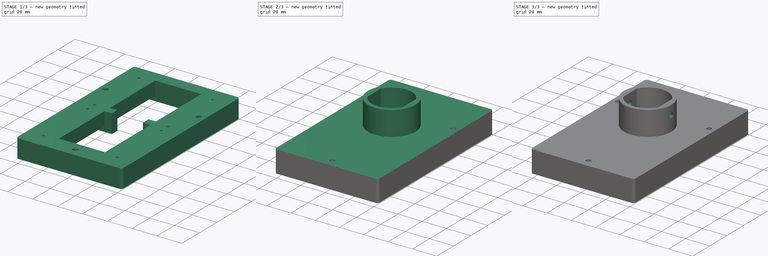
[diagram: build sequence overview — one tinted view per stage of 3, left to right]
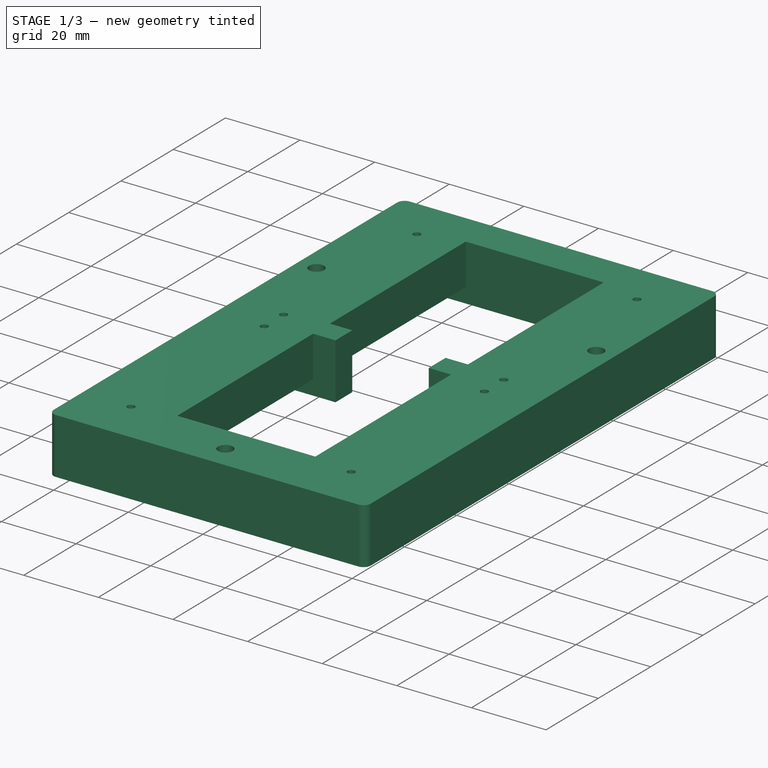
[diagram: stage 1 of 3 — iso view after this stage's code; geometry added in this stage tinted green]
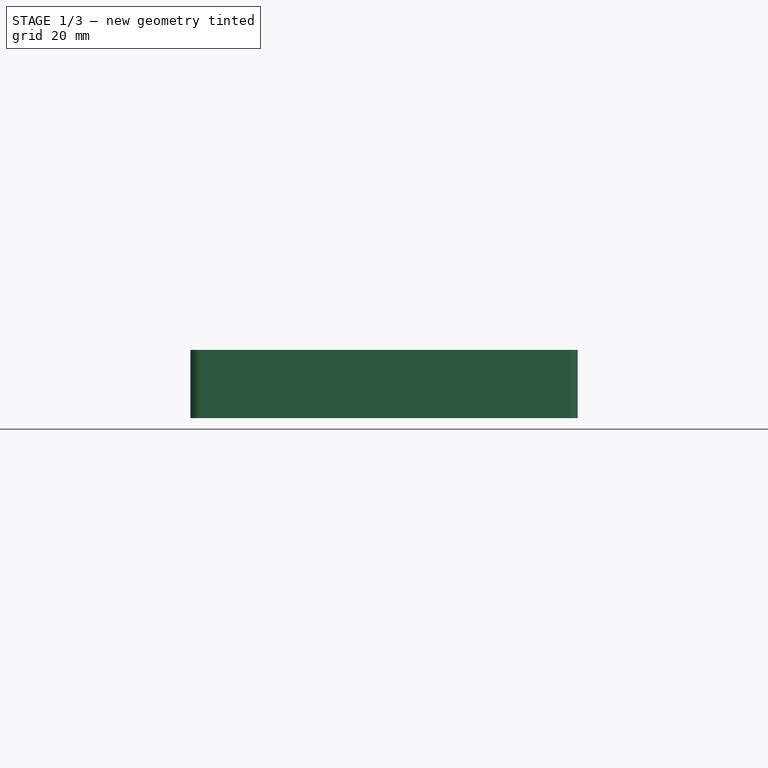
[diagram: stage 1 of 3 — front view after this stage's code; geometry added in this stage tinted green]
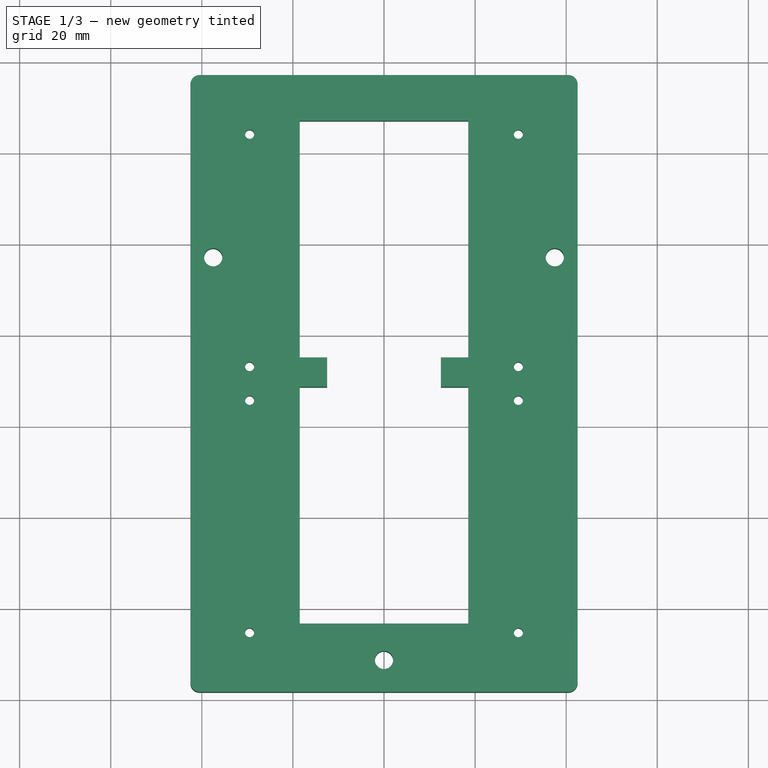
[diagram: stage 1 of 3 — top view after this stage's code; geometry added in this stage tinted green]
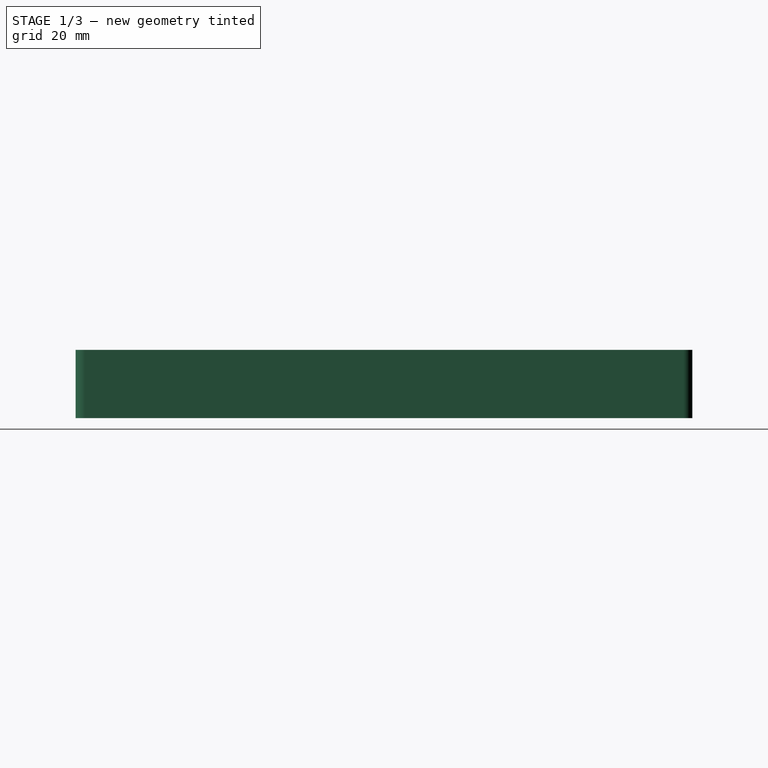
[diagram: stage 1 of 3 — right view after this stage's code; geometry added in this stage tinted green]
FCSTD DOCUMENT  (FreeCAD 1.0R39285 (Git))
Label: dd_3
License: All rights reserved
LicenseURL: https://en.wikipedia.org/wiki/All_rights_reserved
objects: Sketcher::SketchObject×7, PartDesign::Pad×4, PartDesign::Body×2, PartDesign::Pocket×2
note: 34 computed .brp shape members not serialized (recipe doc carries the construction recipe); baked Part::Feature solids carry a one-line shape summary decoded from their .brp

FEATURE [Sketcher::SketchObject] Sketch
  ArcFitTolerance = 1e-06
  AttachmentSupport = -> [XY_Plane]
  FullyConstrained = false
  MakeInternals = false
  MapMode = 5
  sketch-geometry (67):
    g0: LineSegment StartX=-32.5 StartY=25.6258 StartZ=0 EndX=-32.5 EndY=-25.3742 EndZ=0
    g1: LineSegment StartX=32.5 StartY=-25.3742 StartZ=0 EndX=32.5 EndY=25.6258 EndZ=0
    g2: LineSegment StartX=29.5 StartY=28.6258 StartZ=0 EndX=12.5 EndY=28.6258 EndZ=0
    g3: Circle CenterX=-29.5 CenterY=25.6258 CenterZ=0 NormalX=0 NormalY=0 NormalZ=1 AngleXU=0 Radius=1.25
    g4: Circle CenterX=29.5 CenterY=25.6258 CenterZ=0 NormalX=0 NormalY=0 NormalZ=1 AngleXU=0 Radius=1.25
    g5: Circle CenterX=29.5 CenterY=-25.3742 CenterZ=0 NormalX=0 NormalY=0 NormalZ=1 AngleXU=0 Radius=1.25
    g6: Circle CenterX=-29.5 CenterY=-25.3742 CenterZ=0 NormalX=0 NormalY=0 NormalZ=1 AngleXU=0 Radius=1.25
    g7: ArcOfCircle CenterX=-29.5 CenterY=25.6258 CenterZ=0 NormalX=0 NormalY=0 NormalZ=1 AngleXU=0 Radius=3 StartAngle=1.5708 EndAngle=3.14159
    g8: GeomPoint [constr] X=-32.5 Y=28.6258 Z=0
    g9: ArcOfCircle CenterX=29.5 CenterY=25.6258 CenterZ=0 NormalX=0 NormalY=0 NormalZ=1 AngleXU=0 Radius=3 StartAngle=2e-16 EndAngle=1.5708
    g10: GeomPoint [constr] X=32.5 Y=28.6258 Z=0
    g11: ArcOfCircle CenterX=-29.5 CenterY=-25.3742 CenterZ=0 NormalX=0 NormalY=0 NormalZ=1 AngleXU=0 Radius=3 StartAngle=3.14159 EndAngle=6.28319
    g12: ArcOfCircle CenterX=29.5 CenterY=-25.3742 CenterZ=0 NormalX=0 NormalY=0 NormalZ=1 AngleXU=0 Radius=3 StartAngle=3.14159 EndAngle=6.28319
    g13: LineSegment StartX=-26.5 StartY=-24.3742 StartZ=0 EndX=-26.5 EndY=-25.3742 EndZ=0
    g14: LineSegment StartX=26.5 StartY=-25.3742 StartZ=0 EndX=26.5 EndY=-24.3742 EndZ=0
    g15: LineSegment StartX=25.5 StartY=-23.3742 StartZ=0 EndX=-25.5 EndY=-23.3742 EndZ=0
    g16: ArcOfCircle CenterX=25.5 CenterY=-24.3742 CenterZ=0 NormalX=0 NormalY=0 NormalZ=1 AngleXU=0 Radius=1 StartAngle=0 EndAngle=1.5708
    g17: GeomPoint [constr] X=26.5 Y=-23.3742 Z=0
    g18: ArcOfCircle CenterX=-25.5 CenterY=-24.3742 CenterZ=0 NormalX=0 NormalY=0 NormalZ=1 AngleXU=0 Radius=1 StartAngle=1.5708 EndAngle=3.14159
    g19: GeomPoint [constr] X=-26.5 Y=-23.3742 Z=0
    g20: LineSegment StartX=-32.5 StartY=84.0458 StartZ=0 EndX=-32.5 EndY=33.0458 EndZ=0
    g21: LineSegment StartX=32.5 StartY=33.0458 StartZ=0 EndX=32.5 EndY=84.0458 EndZ=0
    g22: LineSegment StartX=29.5 StartY=87.0458 StartZ=0 EndX=-29.5 EndY=87.0458 EndZ=0
    g23: LineSegment StartX=-26.5 StartY=34.0458 StartZ=0 EndX=-26.5 EndY=33.0458 EndZ=0
    g24: LineSegment StartX=26.5 StartY=33.0458 StartZ=0 EndX=26.5 EndY=34.0458 EndZ=0
    g25: LineSegment StartX=25.5 StartY=35.0458 StartZ=0 EndX=12.5 EndY=35.0458 EndZ=0
    g26: Circle CenterX=-29.5 CenterY=84.0458 CenterZ=0 NormalX=0 NormalY=0 NormalZ=1 AngleXU=0 Radius=1.25
    g27: Circle CenterX=29.5 CenterY=84.0458 CenterZ=0 NormalX=0 NormalY=0 NormalZ=1 AngleXU=0 Radius=1.25
    g28: Circle CenterX=-29.5 CenterY=33.0458 CenterZ=0 NormalX=0 NormalY=0 NormalZ=1 AngleXU=0 Radius=1.25
    g29: Circle CenterX=29.5 CenterY=33.0458 CenterZ=0 NormalX=0 NormalY=0 NormalZ=1 AngleXU=0 Radius=1.25
    g30: ArcOfCircle CenterX=-29.5 CenterY=33.0458 CenterZ=0 NormalX=0 NormalY=0 NormalZ=1 AngleXU=0 Radius=3 StartAngle=3.14159 EndAngle=6.28319
    g31: ArcOfCircle CenterX=29.5 CenterY=33.0458 CenterZ=0 NormalX=0 NormalY=0 NormalZ=1 AngleXU=0 Radius=3 StartAngle=3.14159 EndAngle=6.28319
    g32: ArcOfCircle CenterX=-29.5 CenterY=84.0458 CenterZ=0 NormalX=0 NormalY=0 NormalZ=1 AngleXU=0 Radius=3 StartAngle=1.5708 EndAngle=3.14159
    g33: GeomPoint [constr] X=-32.5 Y=87.0458 Z=0
    g34: ArcOfCircle CenterX=29.5 CenterY=84.0458 CenterZ=0 NormalX=0 NormalY=0 NormalZ=1 AngleXU=0 Radius=3 StartAngle=2.2e-15 EndAngle=1.5708
    g35: GeomPoint [constr] X=32.5 Y=87.0458 Z=0
    g36: ArcOfCircle CenterX=-25.5 CenterY=34.0458 CenterZ=0 NormalX=0 NormalY=0 NormalZ=1 AngleXU=0 Radius=1 StartAngle=1.5708 EndAngle=3.14159
    g37: GeomPoint [constr] X=-26.5 Y=35.0458 Z=0
    g38: ArcOfCircle CenterX=25.5 CenterY=34.0458 CenterZ=0 NormalX=0 NormalY=0 NormalZ=1 AngleXU=0 Radius=1 StartAngle=1.9e-15 EndAngle=1.5708
    g39: GeomPoint [constr] X=26.5 Y=35.0458 Z=0
    g40: LineSegment StartX=-42.5 StartY=95.0458 StartZ=0 EndX=-42.5 EndY=-36.3742 EndZ=0
    g41: LineSegment StartX=-40.5 StartY=-38.3742 StartZ=0 EndX=40.5 EndY=-38.3742 EndZ=0
    g42: LineSegment StartX=42.5 StartY=-36.3742 StartZ=0 EndX=42.5 EndY=95.0458 EndZ=0
    g43: LineSegment StartX=40.5 StartY=97.0458 StartZ=0 EndX=-40.5 EndY=97.0458 EndZ=0
    g44: ArcOfCircle CenterX=-40.5 CenterY=95.0458 CenterZ=0 NormalX=0 NormalY=0 NormalZ=1 AngleXU=0 Radius=2 StartAngle=1.5708 EndAngle=3.14159
    g45: GeomPoint [constr] X=-42.5 Y=97.0458 Z=0
    g46: ArcOfCircle CenterX=40.5 CenterY=95.0458 CenterZ=0 NormalX=0 NormalY=0 NormalZ=1 AngleXU=0 Radius=2 StartAngle=-1.8e-15 EndAngle=1.5708
    g47: GeomPoint [constr] X=42.5 Y=97.0458 Z=0
    g48: ArcOfCircle CenterX=40.5 CenterY=-36.3742 CenterZ=0 NormalX=0 NormalY=0 NormalZ=1 AngleXU=0 Radius=2 StartAngle=4.71239 EndAngle=6.28319
    g49: GeomPoint [constr] X=42.5 Y=-38.3742 Z=0
    g50: ArcOfCircle CenterX=-40.5 CenterY=-36.3742 CenterZ=0 NormalX=0 NormalY=0 NormalZ=1 AngleXU=0 Radius=2 StartAngle=3.14159 EndAngle=4.71239
    g51: GeomPoint [constr] X=-42.5 Y=-38.3742 Z=0
    g52: ArcOfCircle CenterX=-10.5 CenterY=25.6258 CenterZ=0 NormalX=0 NormalY=0 NormalZ=1 AngleXU=0 Radius=1.25 StartAngle=1.5708 EndAngle=4.71239
    g53: ArcOfCircle CenterX=9.82 CenterY=25.6258 CenterZ=0 NormalX=0 NormalY=0 NormalZ=1 AngleXU=0 Radius=1.25 StartAngle=4.71239 EndAngle=7.85398
    g54: LineSegment StartX=-10.5 StartY=24.3758 StartZ=0 EndX=9.82 EndY=24.3758 EndZ=0
    g55: LineSegment StartX=9.82 StartY=26.8758 StartZ=0 EndX=-10.5 EndY=26.8758 EndZ=0
    g56: ArcOfCircle CenterX=-10.5 CenterY=84.0458 CenterZ=0 NormalX=0 NormalY=0 NormalZ=1 AngleXU=0 Radius=1.25 StartAngle=1.5708 EndAngle=4.71239
    g57: ArcOfCircle CenterX=9.82 CenterY=84.0458 CenterZ=0 NormalX=0 NormalY=0 NormalZ=1 AngleXU=0 Radius=1.25 StartAngle=4.71239 EndAngle=7.85398
    g58: LineSegment StartX=-10.5 StartY=82.7958 StartZ=0 EndX=9.82 EndY=82.7958 EndZ=0
    g59: LineSegment StartX=9.82 StartY=85.2958 StartZ=0 EndX=-10.5 EndY=85.2958 EndZ=0
    g60: Circle CenterX=0 CenterY=-31.3742 CenterZ=0 NormalX=0 NormalY=0 NormalZ=1 AngleXU=0 Radius=2
    g61: Circle CenterX=-37.5 CenterY=57.0458 CenterZ=0 NormalX=0 NormalY=0 NormalZ=1 AngleXU=0 Radius=2
    g62: Circle CenterX=37.5 CenterY=57.0458 CenterZ=0 NormalX=0 NormalY=0 NormalZ=1 AngleXU=0 Radius=2
    g63: LineSegment StartX=-12.5 StartY=35.0458 StartZ=0 EndX=-12.5 EndY=28.6258 EndZ=0
    g64: LineSegment StartX=12.5 StartY=35.0458 StartZ=0 EndX=12.5 EndY=28.6258 EndZ=0
    g65: LineSegment StartX=-12.5 StartY=35.0458 StartZ=0 EndX=-25.5 EndY=35.0458 EndZ=0
    g66: LineSegment StartX=-12.5 StartY=28.6258 StartZ=0 EndX=-29.5 EndY=28.6258 EndZ=0
  constraints (158):
    c: Vertical(g0)
    c: Vertical(g1)
    c: Horizontal(g2)
    c: Diameter(g3) = 2.5
    c: Equal(g3,g4)
    c: Equal(g4,g5)
    c: Equal(g5,g6)
    c: Symmetric(g3,g4,g-2)
    c: DistanceX(g3,g4) = 59
    c: PointOnObject(g8,g0)
    c: PointOnObject(g8,g66)
    c: Tangent(g0,g7) = -1.5708
    c: Coincident(g66,g7) = -1.5708
    c: PointOnObject(g10,g2)
    c: PointOnObject(g10,g1)
    c: Tangent(g2,g9) = -1.5708
    c: Tangent(g1,g9) = -1.5708
    c: Radius(g7) = 3
    c: Coincident(g7,g3)
    c: Coincident(g9,g4)
    c: Radius(g11) = 3
    c: Vertical(g13)
    c: Vertical(g14)
    c: Horizontal(g15)
    c: DistanceY(g11,g3) = 51
    c: DistanceY(g11,g19) = 2
    c: PointOnObject(g17,g15)
    c: PointOnObject(g17,g14)
    c: Tangent(g15,g16) = -1.5708
    c: Tangent(g14,g16) = -1.5708
    c: PointOnObject(g19,g13)
    c: PointOnObject(g19,g15)
    c: Tangent(g13,g18) = -1.5708
    c: Tangent(g15,g18) = -1.5708
    c: Radius(g18) = 1
    c: Radius(g16) = 1
    c: Coincident(g6,g11)
    c: Radius(g12) = 3
    c: DistanceY(g6,g12) = 0
    c: Coincident(g5,g12)
    c: Tangent(g13,g11) = 1.5708
    c: Tangent(g14,g12) = 1.5708
    c: Tangent(g1,g12) = -1.5708
    c: Tangent(g0,g11) = -1.5708
    c: Vertical(g20)
    c: Vertical(g21)
    c: Horizontal(g22)
    c: Vertical(g23)
    c: Vertical(g24)
    c: Horizontal(g25)
    c: PointOnObject(g33,g20)
    c: PointOnObject(g33,g22)
    c: Tangent(g20,g32) = -1.5708
    c: Tangent(g22,g32) = -1.5708
    c: PointOnObject(g35,g22)
    c: PointOnObject(g35,g21)
    c: Tangent(g22,g34) = -1.5708
    c: Tangent(g21,g34) = -1.5708
    c: Equal(g3,g26)
    c: Equal(g26,g27)
    c: Equal(g27,g29)
    c: Equal(g29,g28)
    c: Radius(g32) = 3
    c: Radius(g30) = 3
    c: Radius(g34) = 3
    c: Radius(g31) = 3
    c: Coincident(g26,g32)
    c: Coincident(g34,g27)
    c: DistanceX(g26,g3) = 0
    c: DistanceX(g4,g27) = 0
    c: PointOnObject(g37,g23)
    c: PointOnObject(g37,g65)
    c: Tangent(g23,g36) = -1.5708
    c: Coincident(g65,g36) = -1.5708
    c: PointOnObject(g39,g25)
    c: PointOnObject(g39,g24)
    c: Tangent(g25,g38) = -1.5708
    c: Tangent(g24,g38) = -1.5708
    c: DistanceY(g30,g26) = 51
    c: DistanceY(g30,g31) = 0
    c: Radius(g36) = 1
    c: Radius(g38) = 1
    c: DistanceY(g30,g65) = 2
    c: Coincident(g28,g30)
    c: Coincident(g31,g29)
    c: Tangent(g20,g30) = -1.5708
    c: Tangent(g21,g31) = -1.5708
    c: Tangent(g24,g31) = 1.5708
    c: Tangent(g23,g30) = 1.5708
    c: DistanceY(g3,g26) = 58.42
    c: Vertical(g40)
    c: Vertical(g42)
    c: Horizontal(g41)
    c: Horizontal(g43)
    c: DistanceX(g45,g20) = 10
    c: DistanceX(g21,g47) = 10
    c: DistanceY(g22,g47) = 10
    c: DistanceY(g49,g5) = 13
    c: PointOnObject(g45,g40)
    c: PointOnObject(g45,g43)
    c: Tangent(g40,g44) = -1.5708
    c: Tangent(g43,g44) = -1.5708
    c: PointOnObject(g47,g43)
    c: PointOnObject(g47,g42)
    c: Tangent(g43,g46) = -1.5708
    c: Tangent(g42,g46) = -1.5708
    c: PointOnObject(g49,g42)
    c: PointOnObject(g49,g41)
    c: Tangent(g42,g48) = -1.5708
    c: Tangent(g41,g48) = -1.5708
    c: PointOnObject(g51,g41)
    c: PointOnObject(g51,g40)
    c: Tangent(g41,g50) = -1.5708
    c: Tangent(g40,g50) = -1.5708
    c: Radius(g44) = 2
    c: Equal(g44,g46)
    c: Equal(g46,g48)
    c: Equal(g48,g50)
    c: Radius(g52) = 1.25
    c: DistanceY(g52,g3) = 0
    c: Horizontal(g54)
    c: Horizontal(g55)
    c: DistanceX(g52,g53) = 20.32
    c: DistanceX(g3,g52) = 19
    c: Horizontal(g58)
    c: Horizontal(g59)
    c: Radius(g56) = 1.25
    c: DistanceX(g56,g57) = 20.32
    c: DistanceX(g26,g56) = 19
    c: DistanceY(g56,g26) = 0
    c: Tangent(g52,g54) = -1.5708
    c: Tangent(g52,g55) = -1.5708
    c: Tangent(g56,g58) = -1.5708
    c: Tangent(g56,g59) = -1.5708
    c: Tangent(g57,g59) = -1.5708
    c: Tangent(g57,g58) = -1.5708
    c: Tangent(g53,g55) = -1.5708
    c: Tangent(g53,g54) = -1.5708
    c: Diameter(g61) = 4
    c: Diameter(g62) = 4
    c: DistanceX(g45,g61) = 5
    c: DistanceX(g62,g47) = 5
    c: DistanceY(g61,g43) = 40
    c: DistanceY(g61,g62) = 0
    c: PointOnObject(g60,g-2)
    c: DistanceY(g41,g60) = 7
    c: Diameter(g60) = 4
    c: Vertical(g63)
    c: Vertical(g64)
    c: PointOnObject(g63,g65)
    c: PointOnObject(g63,g66)
    c: DistanceX(g28,g63) = 17
    c: DistanceX(g64,g29) = 17
    c: Coincident(g25,g64)
    c: PointOnObject(g65,g63)
    c: Coincident(g2,g64)
    c: PointOnObject(g66,g63)
    c: DistanceX(g40,g42) = 85
FEATURE [PartDesign::Pad] Pad
  Direction = (0,0,1)
  Length = 4
  Length2 = 10
  Profile = -> Sketch
  ReferenceAxis = -> Sketch [N_Axis]
  Refine = true
  Reversed = true
  Suppressed = false
  Type = 0
FEATURE [Sketcher::SketchObject] Sketch001
  ArcFitTolerance = 1e-06
  AttachmentSupport = -> [Pad]
  ExternalGeometry = -> [Pad]
  FullyConstrained = false
  MakeInternals = false
  MapMode = 5
  sketch-geometry (39):
    g0: Circle CenterX=-37.5 CenterY=57.0458 CenterZ=0 NormalX=0 NormalY=0 NormalZ=1 AngleXU=0 Radius=2
    g1: Circle CenterX=37.5 CenterY=57.0458 CenterZ=0 NormalX=0 NormalY=0 NormalZ=1 AngleXU=0 Radius=2
    g2: Circle CenterX=0 CenterY=-31.3742 CenterZ=0 NormalX=0 NormalY=0 NormalZ=1 AngleXU=0 Radius=2
    g3: GeomPoint [constr] X=42.5 Y=-38.3742 Z=0
    g4: GeomPoint [constr] X=-42.5 Y=-38.3742 Z=0
    g5: GeomPoint [constr] X=-42.5 Y=97.0458 Z=0
    g6: GeomPoint [constr] X=42.5 Y=97.0458 Z=0
    g7: Circle CenterX=-29.5 CenterY=33.0458 CenterZ=0 NormalX=0 NormalY=0 NormalZ=1 AngleXU=0 Radius=1
    g8: Circle CenterX=-29.5 CenterY=25.6258 CenterZ=0 NormalX=0 NormalY=0 NormalZ=1 AngleXU=0 Radius=1
    g9: Circle CenterX=29.5 CenterY=33.0458 CenterZ=0 NormalX=0 NormalY=0 NormalZ=1 AngleXU=0 Radius=1
    g10: Circle CenterX=29.5 CenterY=25.6258 CenterZ=0 NormalX=0 NormalY=0 NormalZ=1 AngleXU=0 Radius=1
    g11: Circle CenterX=-29.5 CenterY=84.0458 CenterZ=0 NormalX=0 NormalY=0 NormalZ=1 AngleXU=0 Radius=1
    g12: Circle CenterX=29.5 CenterY=84.0458 CenterZ=0 NormalX=0 NormalY=0 NormalZ=1 AngleXU=0 Radius=1
    g13: Circle CenterX=-29.5 CenterY=-25.3742 CenterZ=0 NormalX=0 NormalY=0 NormalZ=1 AngleXU=0 Radius=1
    g14: Circle CenterX=29.5 CenterY=-25.3742 CenterZ=0 NormalX=0 NormalY=0 NormalZ=1 AngleXU=0 Radius=1
    g15: LineSegment StartX=-42.5 StartY=95.0458 StartZ=0 EndX=-42.5 EndY=-36.3742 EndZ=0
    g16: LineSegment StartX=-40.5 StartY=-38.3742 StartZ=0 EndX=40.5 EndY=-38.3742 EndZ=0
    g17: LineSegment StartX=42.5 StartY=-36.3742 StartZ=0 EndX=42.5 EndY=95.0458 EndZ=0
    g18: LineSegment StartX=40.5 StartY=97.0458 StartZ=0 EndX=-40.5 EndY=97.0458 EndZ=0
    g19: ArcOfCircle CenterX=-40.5 CenterY=-36.3742 CenterZ=0 NormalX=0 NormalY=0 NormalZ=1 AngleXU=0 Radius=2 StartAngle=3.14159 EndAngle=4.71239
    g20: GeomPoint [constr] X=-42.5 Y=-38.3742 Z=0
    g21: ArcOfCircle CenterX=40.5 CenterY=-36.3742 CenterZ=0 NormalX=0 NormalY=0 NormalZ=1 AngleXU=0 Radius=2 StartAngle=4.71239 EndAngle=6.28319
    g22: GeomPoint [constr] X=42.5 Y=-38.3742 Z=0
    g23: ArcOfCircle CenterX=40.5 CenterY=95.0458 CenterZ=0 NormalX=0 NormalY=0 NormalZ=1 AngleXU=0 Radius=2 StartAngle=-9e-16 EndAngle=1.5708
    g24: GeomPoint [constr] X=42.5 Y=97.0458 Z=0
    g25: ArcOfCircle CenterX=-40.5 CenterY=95.0458 CenterZ=0 NormalX=0 NormalY=0 NormalZ=1 AngleXU=0 Radius=2 StartAngle=1.5708 EndAngle=3.14159
    g26: GeomPoint [constr] X=-42.5 Y=97.0458 Z=0
    g27: LineSegment StartX=-18.5 StartY=87.0458 StartZ=0 EndX=18.5 EndY=87.0458 EndZ=0
    g28: LineSegment StartX=18.5 StartY=87.0458 StartZ=0 EndX=18.5 EndY=35.0458 EndZ=0
    g29: LineSegment StartX=18.5 StartY=35.0458 StartZ=0 EndX=12.5 EndY=35.0458 EndZ=0
    g30: LineSegment StartX=12.5 StartY=35.0458 StartZ=0 EndX=12.5 EndY=28.6258 EndZ=0
    g31: LineSegment StartX=12.5 StartY=28.6258 StartZ=0 EndX=18.5 EndY=28.6258 EndZ=0
    g32: LineSegment StartX=18.5 StartY=28.6258 StartZ=0 EndX=18.5 EndY=-23.3742 EndZ=0
    g33: LineSegment StartX=18.5 StartY=-23.3742 StartZ=0 EndX=-18.5 EndY=-23.3742 EndZ=0
    g34: LineSegment StartX=-18.5 StartY=-23.3742 StartZ=0 EndX=-18.5 EndY=28.6258 EndZ=0
    g35: LineSegment StartX=-18.5 StartY=28.6258 StartZ=0 EndX=-12.5 EndY=28.6258 EndZ=0
    g36: LineSegment StartX=-12.5 StartY=28.6258 StartZ=0 EndX=-12.5 EndY=35.0458 EndZ=0
    g37: LineSegment StartX=-12.5 StartY=35.0458 StartZ=0 EndX=-18.5 EndY=35.0458 EndZ=0
    g38: LineSegment StartX=-18.5 StartY=35.0458 StartZ=0 EndX=-18.5 EndY=87.0458 EndZ=0
  constraints (98):
    c: Equal(g2,g0)
    c: Equal(g2,g1)
    c: Diameter(g2) = 4
    c: Coincident(g0,g-31)
    c: Coincident(g1,g-32)
    c: Coincident(g-33,g2)
    c: Diameter(g13) = 2
    c: Equal(g13,g14)
    c: Equal(g14,g10)
    c: Equal(g10,g8)
    c: Equal(g8,g11)
    c: Equal(g11,g12)
    c: Equal(g12,g9)
    c: Equal(g9,g7)
    c: Coincident(g11,g-24)
    c: Coincident(g-26,g12)
    c: Coincident(g-22,g7)
    c: Coincident(g-18,g9)
    c: Coincident(g10,g-14)
    c: Coincident(g-4,g8)
    c: Coincident(g-6,g13)
    c: Coincident(g-12,g14)
    c: Vertical(g15)
    c: Vertical(g17)
    c: Horizontal(g16)
    c: Horizontal(g18)
    c: PointOnObject(g-28,g15)
    c: PointOnObject(g-28,g18)
    c: PointOnObject(g-30,g16)
    c: PointOnObject(g-30,g17)
    c: PointOnObject(g20,g15)
    c: PointOnObject(g20,g16)
    c: Tangent(g15,g19) = -1.5708
    c: Tangent(g16,g19) = -1.5708
    c: PointOnObject(g22,g17)
    c: PointOnObject(g22,g16)
    c: Tangent(g17,g21) = -1.5708
    c: Tangent(g16,g21) = -1.5708
    c: PointOnObject(g24,g18)
    c: PointOnObject(g24,g17)
    c: Tangent(g18,g23) = -1.5708
    c: Tangent(g17,g23) = -1.5708
    c: PointOnObject(g26,g15)
    c: PointOnObject(g26,g18)
    c: Tangent(g15,g25) = -1.5708
    c: Tangent(g18,g25) = -1.5708
    c: Equal(g25,g23)
    c: Equal(g25,g19)
    c: Equal(g25,g21)
    c: Radius(g25) = 2
    c: Coincident(g27,g28)
    c: Vertical(g28)
    c: Coincident(g28,g29)
    c: Horizontal(g29)
    c: Coincident(g29,g30)
    c: Vertical(g30)
    c: Coincident(g30,g31)
    c: Horizontal(g31)
    c: Coincident(g31,g32)
    c: Vertical(g32)
    c: Coincident(g32,g33)
    c: Coincident(g33,g34)
    c: Coincident(g34,g35)
    c: Coincident(g35,g36)
    c: Coincident(g36,g37)
    c: Coincident(g37,g38)
    c: Coincident(g38,g27)
    c: Horizontal(g27)
    c: Vertical(g38)
    c: Horizontal(g37)
    c: Vertical(g36)
    c: Horizontal(g35)
    c: Horizontal(g33)
    c: Vertical(g34)
    c: DistanceY(g27,g-25) = 0
    c: DistanceY(g-20,g37) = 0
    c: DistanceY(g34,g-4) = 0
    c: DistanceY(g-9,g33) = 0
    c: DistanceY(g31,g-14) = 0
    c: DistanceY(g-16,g28) = 0
    c: DistanceX(g-23,g37) = 14
    c: DistanceX(g-5,g34) = 14
    c: DistanceX(g7,g36) = 17
    c: DistanceX(g29,g9) = 17
    c: DistanceX(g31,g-14) = 14
    c: DistanceX(g28,g-19) = 14
    c: DistanceX(g35,g30) = 25
    c: DistanceX(g34,g35) = 6
    c: DistanceY(g33,g27) = 110.42
    c: DistanceY(g16,g-10) = 15
    c: DistanceY(g16,g18) = 135.42
    c: DistanceY(g9,g12) = 51
    c: DistanceY(g34,g37) = 6.42
    c: DistanceY(g7,g11) = 51
    c: DistanceY(g-25,g18) = 10
    c: DistanceY(g13,g8) = 51
    c: DistanceY(g16,g13) = 13
    c: DistanceX(g-6,g-7) = 6
FEATURE [PartDesign::Pad] Pad001
  BaseFeature = -> Pad
  Direction = (0,0,1)
  Length = 11
  Length2 = 10
  Profile = -> Sketch001
  ReferenceAxis = -> Sketch001 [N_Axis]
  Refine = true
  Suppressed = false
  Type = 0
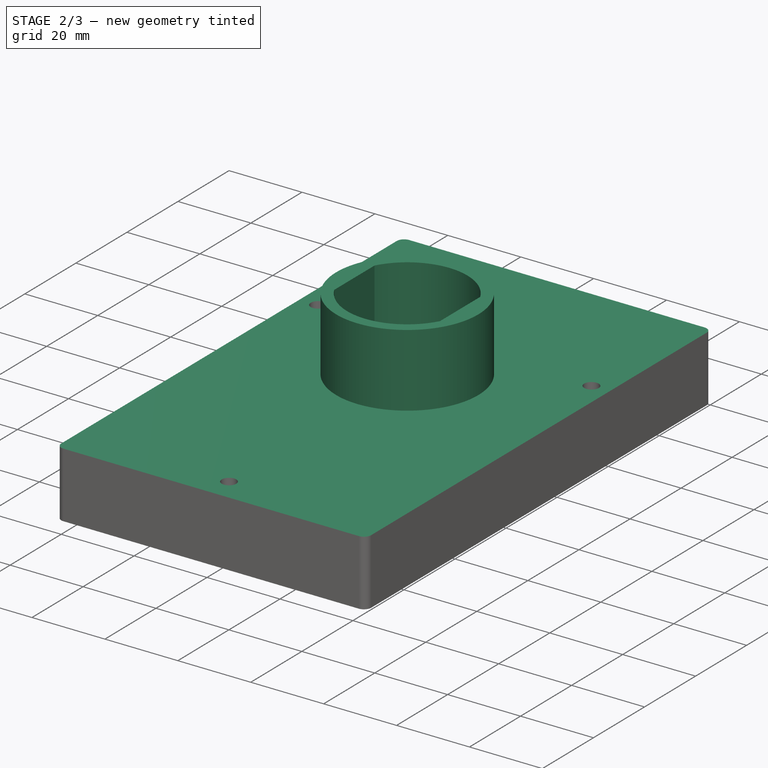
[diagram: stage 2 of 3 — iso view after this stage's code; geometry added in this stage tinted green]
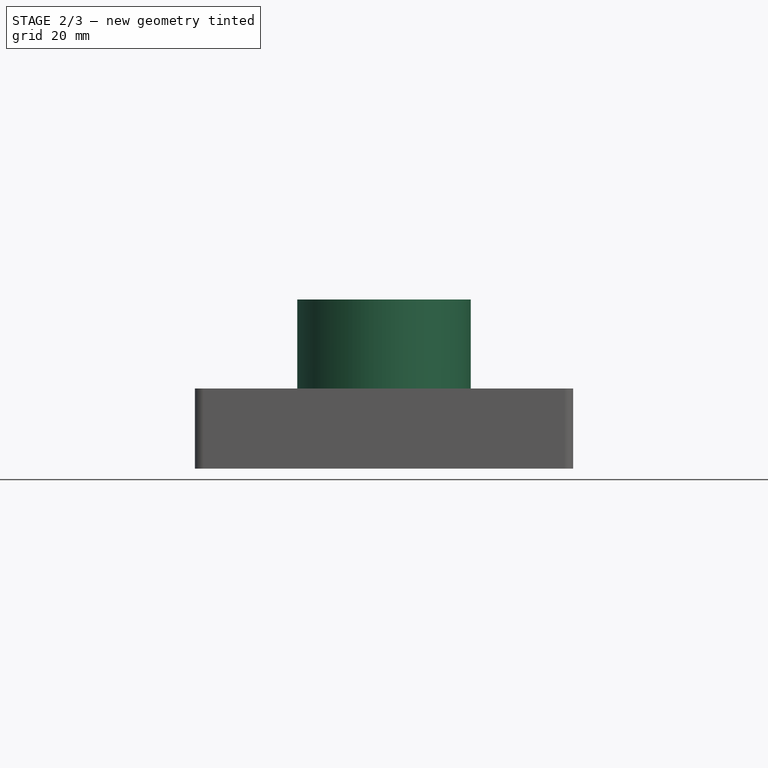
[diagram: stage 2 of 3 — front view after this stage's code; geometry added in this stage tinted green]
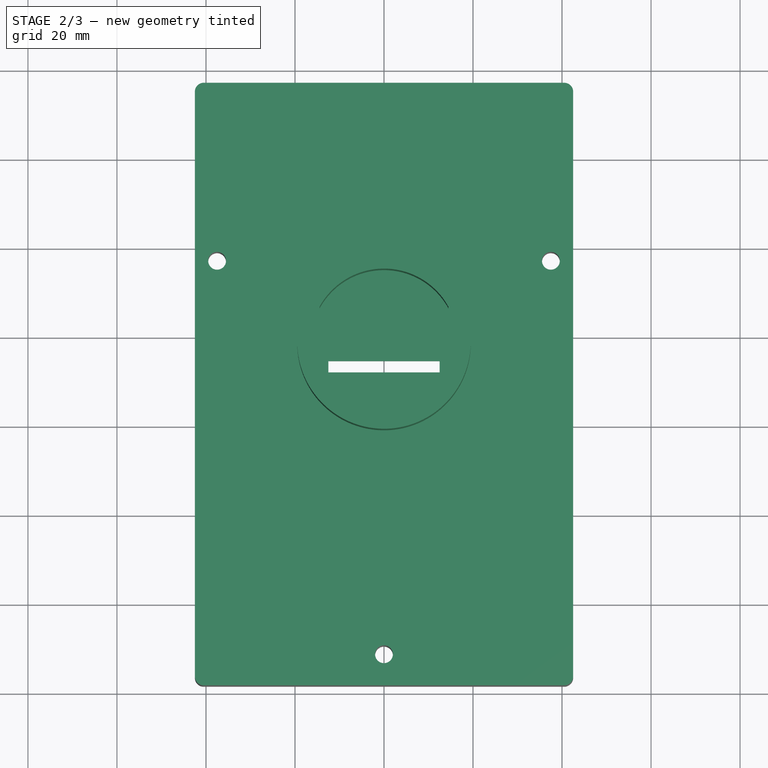
[diagram: stage 2 of 3 — top view after this stage's code; geometry added in this stage tinted green]
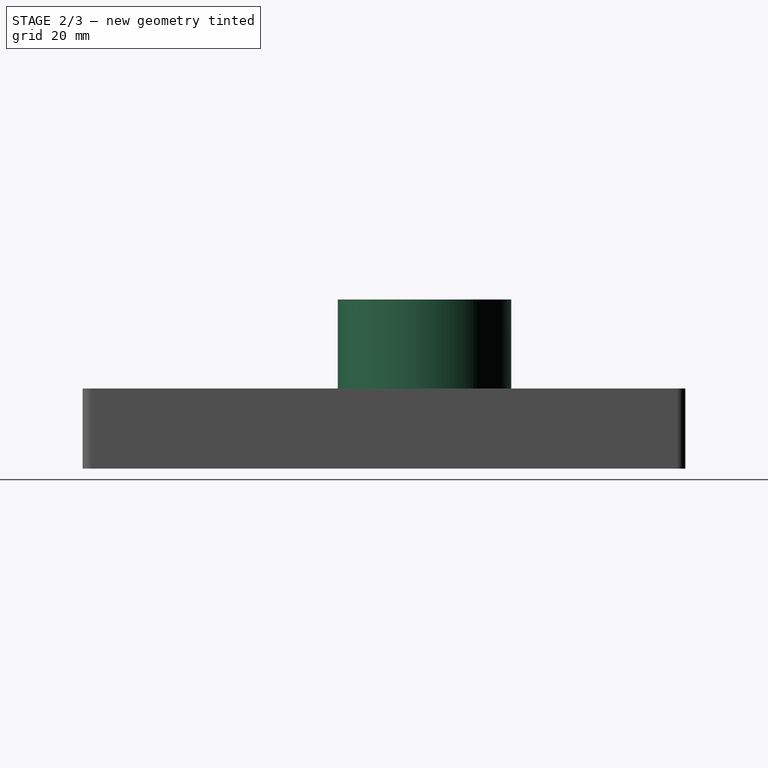
[diagram: stage 2 of 3 — right view after this stage's code; geometry added in this stage tinted green]
FEATURE [Sketcher::SketchObject] Sketch002
  ArcFitTolerance = 1e-06
  AttachmentSupport = -> [Pad001]
  ExternalGeometry = -> [Pad001]
  FullyConstrained = true
  MakeInternals = false
  MapMode = 5
  Placement = pos=(0,0,11) rot=(0,0,1;0rad)
  sketch-geometry (19):
    g0: LineSegment StartX=-42.5 StartY=95.0458 StartZ=0 EndX=-42.5 EndY=-36.3742 EndZ=0
    g1: LineSegment StartX=-40.5 StartY=-38.3742 StartZ=0 EndX=40.5 EndY=-38.3742 EndZ=0
    g2: LineSegment StartX=42.5 StartY=-36.3742 StartZ=0 EndX=42.5 EndY=95.0458 EndZ=0
    g3: LineSegment StartX=40.5 StartY=97.0458 StartZ=0 EndX=-40.5 EndY=97.0458 EndZ=0
    g4: LineSegment StartX=-12.5 StartY=34.5158 StartZ=0 EndX=-12.5 EndY=31.9758 EndZ=0
    g5: LineSegment StartX=-12.5 StartY=31.9758 StartZ=0 EndX=12.5 EndY=31.9758 EndZ=0
    g6: LineSegment StartX=12.5 StartY=31.9758 StartZ=0 EndX=12.5 EndY=34.5158 EndZ=0
    g7: LineSegment StartX=12.5 StartY=34.5158 StartZ=0 EndX=-12.5 EndY=34.5158 EndZ=0
    g8: Circle CenterX=-37.5 CenterY=57.0458 CenterZ=0 NormalX=0 NormalY=0 NormalZ=1 AngleXU=0 Radius=2
    g9: Circle CenterX=37.5 CenterY=57.0458 CenterZ=0 NormalX=0 NormalY=0 NormalZ=1 AngleXU=0 Radius=2
    g10: Circle CenterX=0 CenterY=-31.3742 CenterZ=0 NormalX=0 NormalY=0 NormalZ=1 AngleXU=0 Radius=2
    g11: ArcOfCircle CenterX=40.5 CenterY=-36.3742 CenterZ=0 NormalX=0 NormalY=0 NormalZ=1 AngleXU=0 Radius=2 StartAngle=4.71239 EndAngle=6.28319
    g12: GeomPoint [constr] X=42.5 Y=-38.3742 Z=0
    g13: ArcOfCircle CenterX=-40.5 CenterY=-36.3742 CenterZ=0 NormalX=0 NormalY=0 NormalZ=1 AngleXU=0 Radius=2 StartAngle=3.14159 EndAngle=4.71239
    g14: GeomPoint [constr] X=-42.5 Y=-38.3742 Z=0
    g15: ArcOfCircle CenterX=-40.5 CenterY=95.0458 CenterZ=0 NormalX=0 NormalY=0 NormalZ=1 AngleXU=0 Radius=2 StartAngle=1.5708 EndAngle=3.14159
    g16: GeomPoint [constr] X=-42.5 Y=97.0458 Z=0
    g17: ArcOfCircle CenterX=40.5 CenterY=95.0458 CenterZ=0 NormalX=0 NormalY=0 NormalZ=1 AngleXU=0 Radius=2 StartAngle=1.158e-13 EndAngle=1.5708
    g18: GeomPoint [constr] X=42.5 Y=97.0458 Z=0
  constraints (47):
    c: Vertical(g0)
    c: Vertical(g2)
    c: Horizontal(g1)
    c: Horizontal(g3)
    c: Coincident(g4,g5)
    c: Coincident(g5,g6)
    c: Coincident(g6,g7)
    c: Coincident(g7,g4)
    c: Vertical(g4)
    c: Vertical(g6)
    c: Horizontal(g5)
    c: Horizontal(g7)
    c: PointOnObject(g-10,g0)
    c: PointOnObject(g-10,g3)
    c: PointOnObject(g-7,g1)
    c: PointOnObject(g-6,g2)
    c: PointOnObject(g12,g1)
    c: PointOnObject(g12,g2)
    c: Tangent(g1,g11) = -1.5708
    c: Tangent(g2,g11) = -1.5708
    c: PointOnObject(g14,g0)
    c: PointOnObject(g14,g1)
    c: Tangent(g0,g13) = -1.5708
    c: Tangent(g1,g13) = -1.5708
    c: PointOnObject(g16,g3)
    c: PointOnObject(g16,g0)
    c: Tangent(g3,g15) = -1.5708
    c: Tangent(g0,g15) = -1.5708
    c: PointOnObject(g18,g3)
    c: PointOnObject(g18,g2)
    c: Tangent(g3,g17) = -1.5708
    c: Tangent(g2,g17) = -1.5708
    c: Equal(g15,g17)
    c: Equal(g15,g11)
    c: Equal(g15,g13)
    c: Radius(g15) = 2
    c: Equal(g10,g8)
    c: Equal(g10,g9)
    c: Diameter(g10) = 4
    c: Coincident(g8,g-11)
    c: Coincident(g9,g-12)
    c: Coincident(g-13,g10)
    c: DistanceY(g4,g4) = 2.54
    c: DistanceY(g-16,g4) = 6.35
    c: DistanceY(g-14,g-14) = 6.42
    c: PointOnObject(g4,g-14)
    c: PointOnObject(g5,g-15)
FEATURE [PartDesign::Pad] Pad002
  BaseFeature = -> Pad001
  Direction = (0,0,1)
  Length = 3
  Length2 = 10
  Profile = -> Sketch002
  ReferenceAxis = -> Sketch002 [N_Axis]
  Refine = true
  Suppressed = false
  Type = 0
FEATURE [Sketcher::SketchObject] Sketch003
  ArcFitTolerance = 1e-06
  AttachmentSupport = -> [XY_Plane001]
  FullyConstrained = true
  MakeInternals = false
  MapMode = 5
FEATURE [PartDesign::Body] Body001
  AllowCompound = false
  Group = -> [Sketch003]
  Origin = -> Origin001
FEATURE [Sketcher::SketchObject] Sketch004
  ArcFitTolerance = 1e-06
  AttachmentSupport = -> [Pad002]
  ExternalGeometry = -> [Pad002]
  FullyConstrained = true
  MakeInternals = false
  MapMode = 5
  Placement = pos=(0,0,14) rot=(0,0,1;0rad)
  sketch-geometry (5):
    g0: ArcOfCircle CenterX=0 CenterY=38.4458 CenterZ=0 NormalX=0 NormalY=0 NormalZ=1 AngleXU=0 Radius=16.5 StartAngle=3.63907 EndAngle=5.78571
    g1: Circle CenterX=0 CenterY=38.4458 CenterZ=0 NormalX=0 NormalY=0 NormalZ=1 AngleXU=0 Radius=19.5
    g2: LineSegment StartX=14.5 StartY=46.3198 StartZ=0 EndX=14.5 EndY=30.5718 EndZ=0
    g3: LineSegment StartX=-14.5 StartY=46.3198 StartZ=0 EndX=-14.5 EndY=30.5718 EndZ=0
    g4: ArcOfCircle CenterX=0 CenterY=38.4458 CenterZ=0 NormalX=0 NormalY=0 NormalZ=1 AngleXU=0 Radius=16.5 StartAngle=0.49748 EndAngle=2.64411
  constraints (19):
    c: Diameter(g0) = 33
    c: DistanceX(g0,g-1) = 0
    c: DistanceY(g-3,g0) = 6.47
    c: Diameter(g1) = 39
    c: Coincident(g1,g0)
    c: Vertical(g2)
    c: Vertical(g3)
    c: PointOnObject(g2,g4)
    c: Distance(g3,g2) = 29
    c: DistanceY(g3,g2) = 0
    c: Coincident(g4,g3)
    c: Coincident(g0,g3)
    c: Equal(g0,g4)
    c: Coincident(g0,g2)
    c: PointOnObject(g4,g2)
    c: Coincident(g0,g4)
    c: DistanceX(g-4,g-7) = 85
    c: DistanceY(g-6,g-5) = 135.42
    c: DistanceY(g-6,g-3) = 70.35
FEATURE [PartDesign::Pad] Pad003
  BaseFeature = -> Pad002
  Direction = (0,0,1)
  Length = 20
  Length2 = 10
  Profile = -> Sketch004
  ReferenceAxis = -> Sketch004 [N_Axis]
  Refine = true
  Suppressed = false
  Type = 0
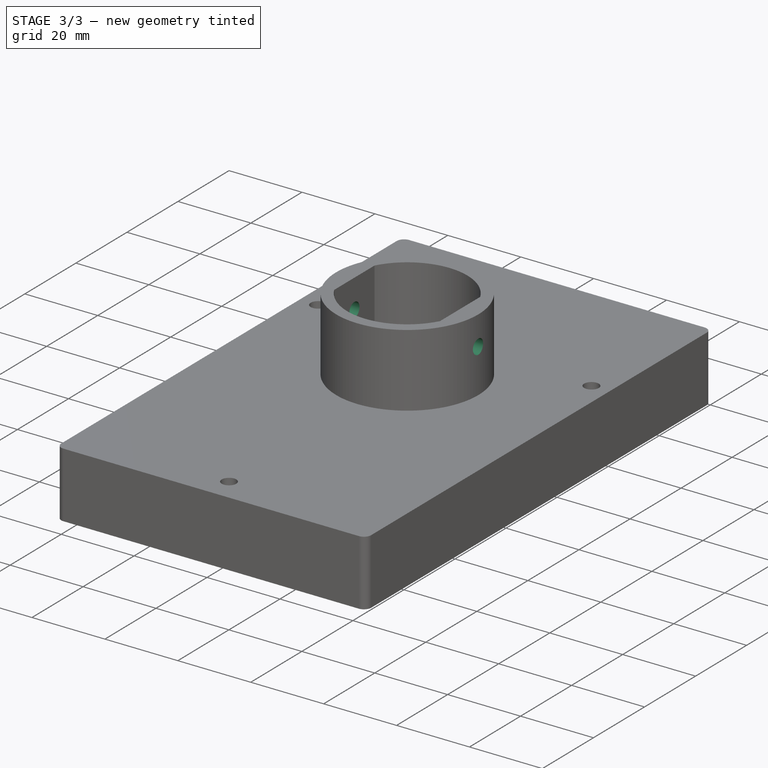
[diagram: stage 3 of 3 — iso view after this stage's code; geometry added in this stage tinted green]
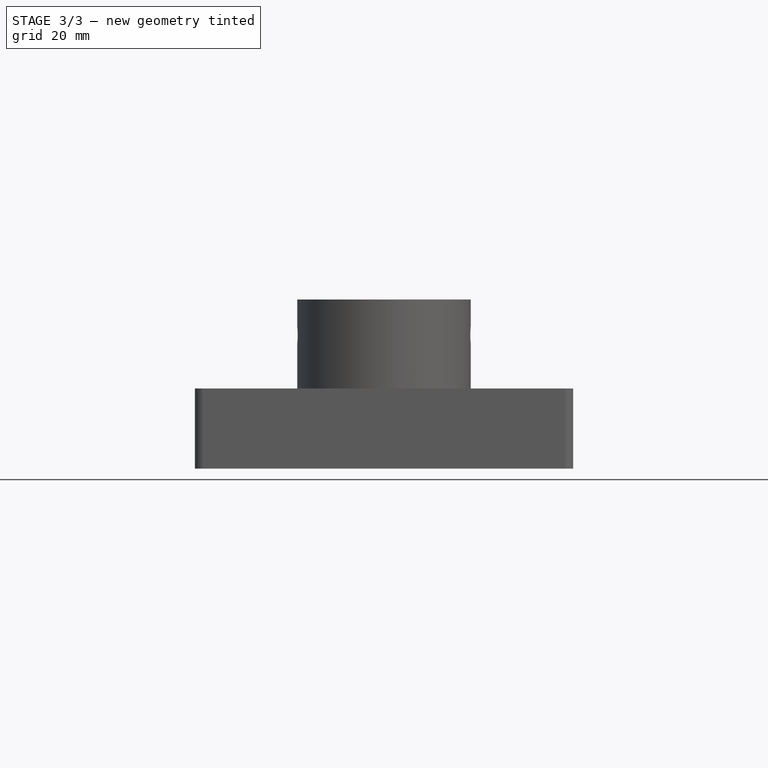
[diagram: stage 3 of 3 — front view after this stage's code; geometry added in this stage tinted green]
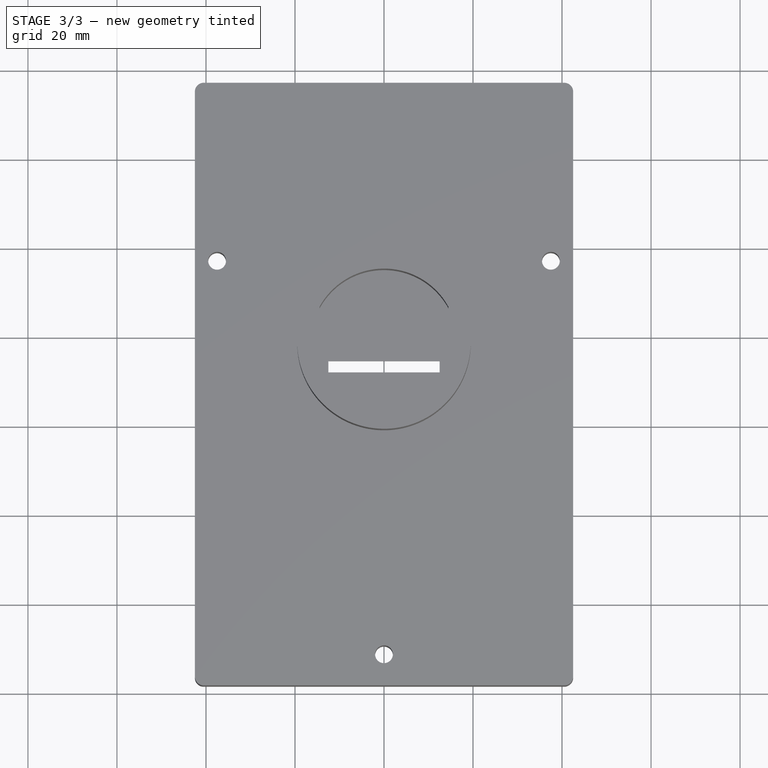
[diagram: stage 3 of 3 — top view after this stage's code; geometry added in this stage tinted green]
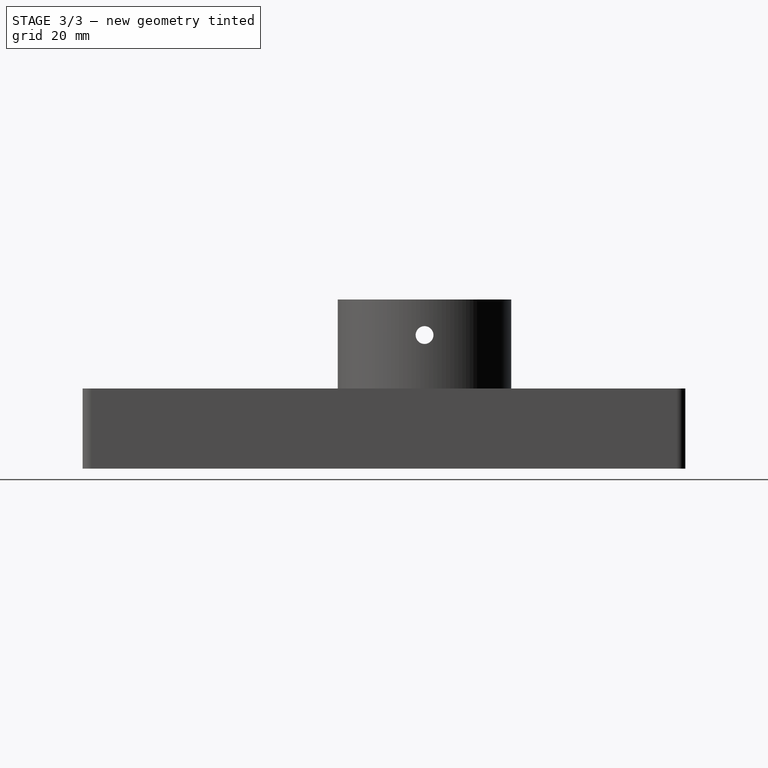
[diagram: stage 3 of 3 — right view after this stage's code; geometry added in this stage tinted green]
FEATURE [Sketcher::SketchObject] Sketch005
  ArcFitTolerance = 1e-06
  AttachmentSupport = -> [Pad003]
  ExternalGeometry = -> [Pad003]
  FullyConstrained = true
  MakeInternals = false
  MapMode = 5
  Placement = pos=(14.5,0,0) rot=(0.57735,-0.57735,-0.57735;2.0944rad)
  sketch-geometry (1):
    g0: Circle CenterX=-38.4458 CenterY=26 CenterZ=0 NormalX=0 NormalY=0 NormalZ=1 AngleXU=0 Radius=2
  constraints (3):
    c: Diameter(g0) = 4
    c: DistanceY(g0,g-3) = 8
    c: DistanceX(g-3,g0) = 19.5
FEATURE [PartDesign::Pocket] Pocket
  BaseFeature = -> Pad003
  Direction = (1,0,0)
  Length = 5
  Length2 = 5
  Profile = -> Sketch005
  ReferenceAxis = -> Sketch005 [N_Axis]
  Refine = true
  Suppressed = false
  Type = 0
FEATURE [Sketcher::SketchObject] Sketch006
  ArcFitTolerance = 1e-06
  AttachmentSupport = -> [Pocket]
  ExternalGeometry = -> [Pocket]
  FullyConstrained = true
  MakeInternals = false
  MapMode = 5
  Placement = pos=(-14.5,0,0) rot=(0.57735,0.57735,0.57735;2.0944rad)
  sketch-geometry (1):
    g0: Circle CenterX=38.4458 CenterY=26 CenterZ=0 NormalX=0 NormalY=0 NormalZ=1 AngleXU=0 Radius=2
  constraints (3):
    c: Diameter(g0) = 4
    c: DistanceX(g-5,g0) = 19.5
    c: DistanceY(g-5,g0) = -8
FEATURE [PartDesign::Pocket] Pocket001
  BaseFeature = -> Pocket
  Direction = (-1,0,0)
  Length = 5
  Length2 = 5
  Profile = -> Sketch006
  ReferenceAxis = -> Sketch006 [N_Axis]
  Refine = true
  Suppressed = false
  Type = 0
FEATURE [PartDesign::Body] Body
  AllowCompound = false
  Group = -> [Sketch,Pad,Sketch001,Pad001,Sketch002,Pad002,Sketch004,Pad003,Sketch005,Pocket,Sketch006,Pocket001]
  Origin = -> Origin
  Tip = -> Pocket001
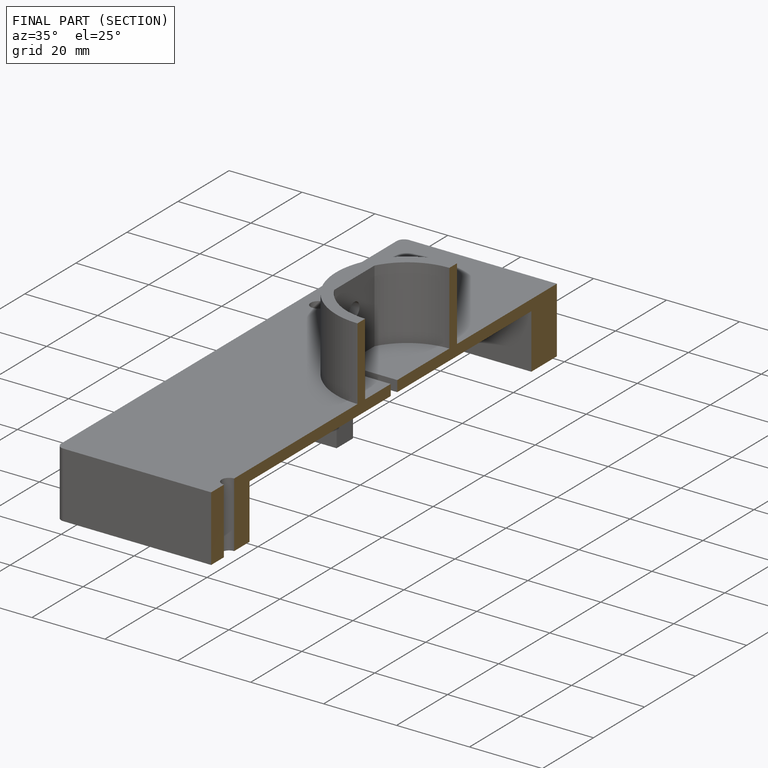
[diagram: finished part — half-section view (interior)]
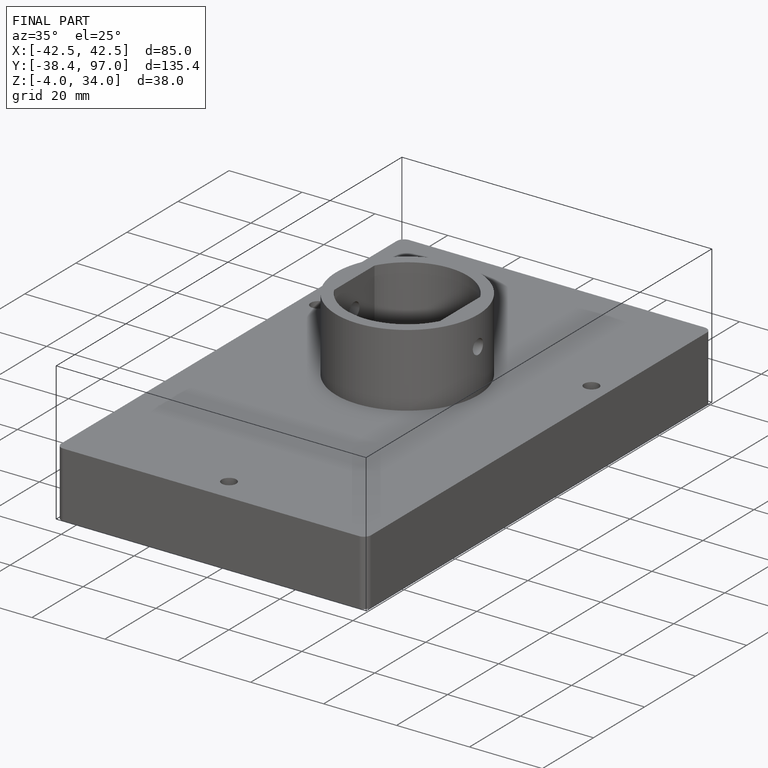
[diagram: finished part — iso view with bounding-box wireframe]
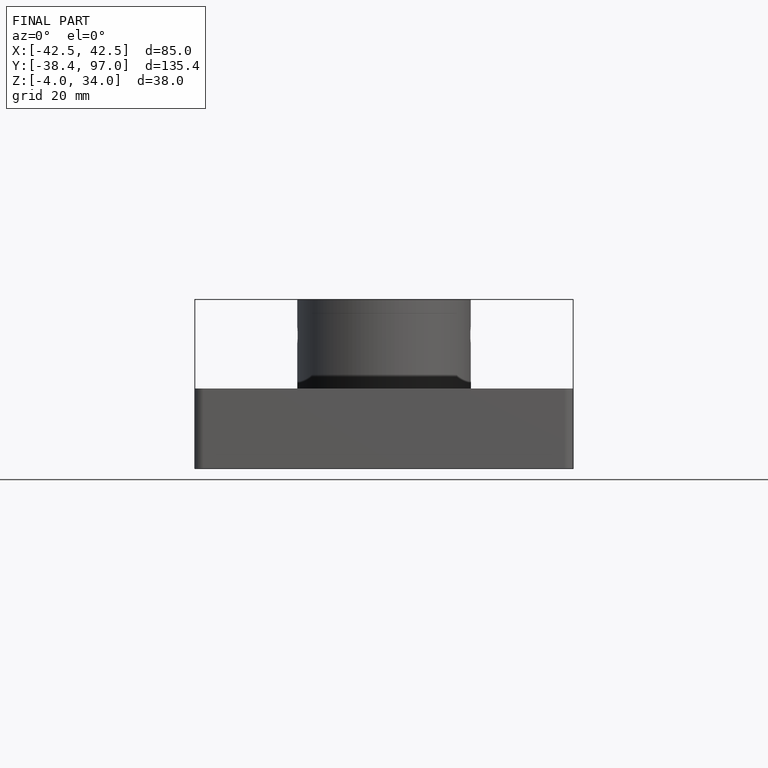
[diagram: finished part — front view with bounding-box wireframe]
